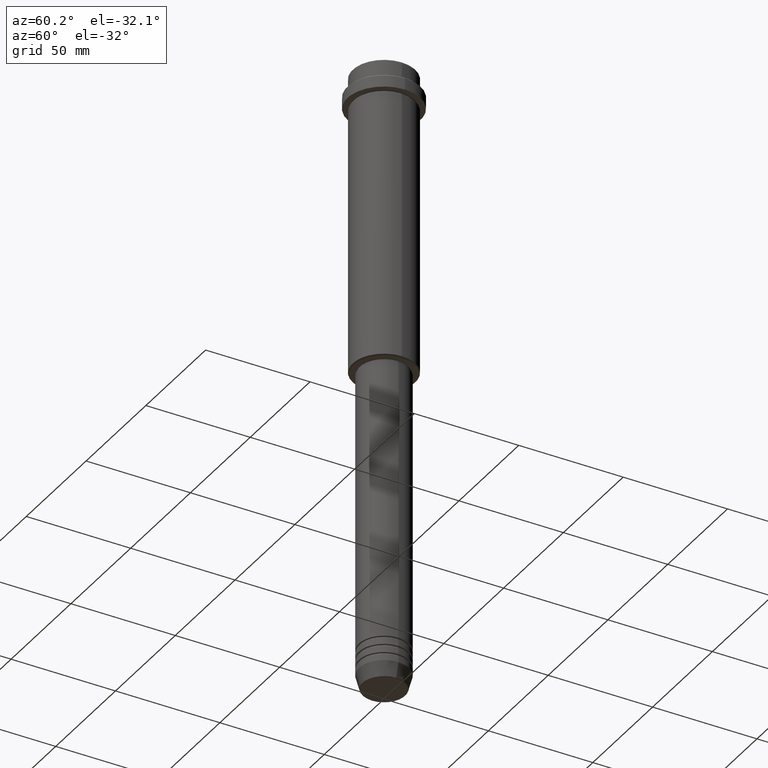
[diagram: clean part render]
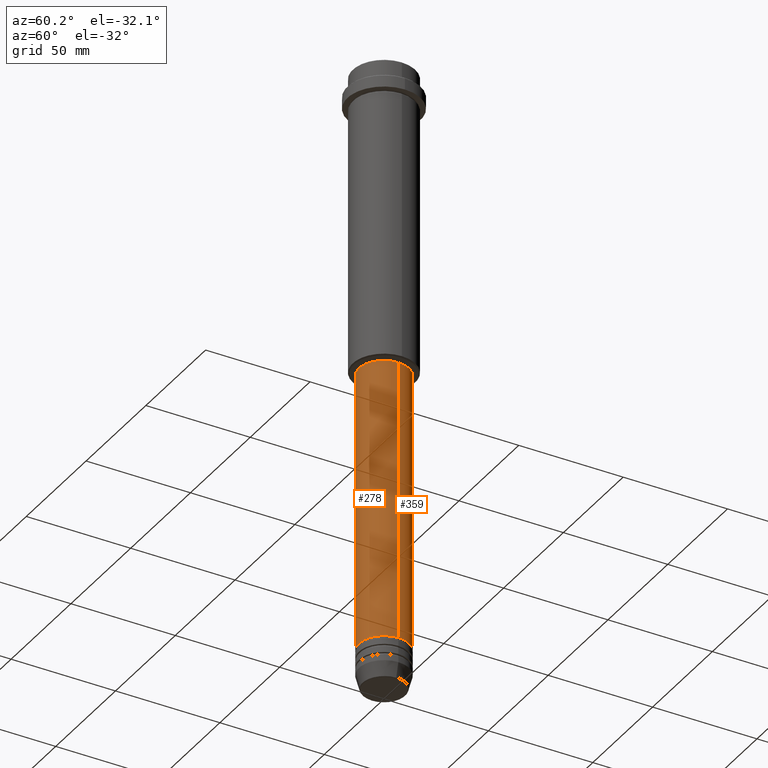
[diagram: same view with one multi-face feature highlighted, each face labeled with its STEP entity id]
A machine part, auxiliary view. The highlighted faces form ONE feature: a constant-radius fillet chain: 2 tangent blend faces with common blend radius 12 mm. The faces share edges in the B-rep.
Their STEP definitions:
[1] entity #359 (Cylinder):
#3 = CARTESIAN_POINT ( 'NONE',  ( -12.00000000000000000, 1.469576158976823947E-15, 0.000000000000000000 ) ) ;
#16 = DIRECTION ( 'NONE',  ( -0.000000000000000000, -0.000000000000000000, 1.000000000000000000 ) ) ;
#19 = CARTESIAN_POINT ( 'NONE',  ( 11.99999999999999822, 0.000000000000000000, -145.9999999999999432 ) ) ;
#25 = DIRECTION ( 'NONE',  ( 1.000000000000000000, 0.000000000000000000, 0.000000000000000000 ) ) ;
#40 = FACE_OUTER_BOUND ( 'NONE', #397, .T. ) ;
#61 = VECTOR ( 'NONE', #16, 1000.000000000000000 ) ;
#89 = EDGE_CURVE ( 'NONE', #106, #1076, #375, .T. ) ;
#106 = VERTEX_POINT ( 'NONE', #19 ) ;
#119 = ORIENTED_EDGE ( 'NONE', *, *, #324, .T. ) ;
#165 = VERTEX_POINT ( 'NONE', #1224 ) ;
#221 = DIRECTION ( 'NONE',  ( -0.000000000000000000, -0.000000000000000000, 1.000000000000000000 ) ) ;
#249 = CARTESIAN_POINT ( 'NONE',  ( -11.99999999999999822, 1.469576158976823750E-15, -145.9999999999999432 ) ) ;
#324 = EDGE_CURVE ( 'NONE', #165, #362, #1232, .T. ) ;
#359 = ADVANCED_FACE ( 'NONE', ( #40 ), #1251, .T. ) ;
#362 = VERTEX_POINT ( 'NONE', #565 ) ;
#375 = CIRCLE ( 'NONE', #940, 11.99999999999999822 ) ;
#397 = EDGE_LOOP ( 'NONE', ( #119, #413, #595, #1382 ) ) ;
#413 = ORIENTED_EDGE ( 'NONE', *, *, #907, .T. ) ;
#434 = LINE ( 'NONE', #3, #61 ) ;
#480 = DIRECTION ( 'NONE',  ( -0.000000000000000000, -0.000000000000000000, 1.000000000000000000 ) ) ;
#546 = DIRECTION ( 'NONE',  ( -0.000000000000000000, -0.000000000000000000, 1.000000000000000000 ) ) ;
#565 = CARTESIAN_POINT ( 'NONE',  ( -12.00000000000000000, 1.469576158976823947E-15, -280.9999999999999432 ) ) ;
#595 = ORIENTED_EDGE ( 'NONE', *, *, #89, .F. ) ;
#604 = DIRECTION ( 'NONE',  ( 1.000000000000000000, 0.000000000000000000, 0.000000000000000000 ) ) ;
#741 = CARTESIAN_POINT ( 'NONE',  ( 0.000000000000000000, 0.000000000000000000, -280.9999999999999432 ) ) ;
#769 = LINE ( 'NONE', #887, #1012 ) ;
#883 = CARTESIAN_POINT ( 'NONE',  ( 0.000000000000000000, 0.000000000000000000, -145.9999999999999432 ) ) ;
#887 = CARTESIAN_POINT ( 'NONE',  ( 12.00000000000000000, 0.000000000000000000, 0.000000000000000000 ) ) ;
#907 = EDGE_CURVE ( 'NONE', #362, #1076, #434, .T. ) ;
#926 = EDGE_CURVE ( 'NONE', #165, #106, #769, .T. ) ;
#940 = AXIS2_PLACEMENT_3D ( 'NONE', #883, #221, #25 ) ;
#944 = AXIS2_PLACEMENT_3D ( 'NONE', #741, #1178, #604 ) ;
#1012 = VECTOR ( 'NONE', #546, 1000.000000000000000 ) ;
#1076 = VERTEX_POINT ( 'NONE', #249 ) ;
#1111 = DIRECTION ( 'NONE',  ( 1.000000000000000000, 0.000000000000000000, 0.000000000000000000 ) ) ;
#1156 = CARTESIAN_POINT ( 'NONE',  ( 0.000000000000000000, 0.000000000000000000, 0.000000000000000000 ) ) ;
#1178 = DIRECTION ( 'NONE',  ( -0.000000000000000000, -0.000000000000000000, 1.000000000000000000 ) ) ;
#1224 = CARTESIAN_POINT ( 'NONE',  ( 12.00000000000000000, 0.000000000000000000, -280.9999999999999432 ) ) ;
#1232 = CIRCLE ( 'NONE', #944, 12.00000000000000000 ) ;
#1251 = CYLINDRICAL_SURFACE ( 'NONE', #1367, 12.00000000000000000 ) ;
#1367 = AXIS2_PLACEMENT_3D ( 'NONE', #1156, #480, #1111 ) ;
#1382 = ORIENTED_EDGE ( 'NONE', *, *, #926, .F. ) ;
[2] entity #278 (Cylinder):
#3 = CARTESIAN_POINT ( 'NONE',  ( -12.00000000000000000, 1.469576158976823947E-15, 0.000000000000000000 ) ) ;
#16 = DIRECTION ( 'NONE',  ( -0.000000000000000000, -0.000000000000000000, 1.000000000000000000 ) ) ;
#19 = CARTESIAN_POINT ( 'NONE',  ( 11.99999999999999822, 0.000000000000000000, -145.9999999999999432 ) ) ;
#61 = VECTOR ( 'NONE', #16, 1000.000000000000000 ) ;
#106 = VERTEX_POINT ( 'NONE', #19 ) ;
#131 = DIRECTION ( 'NONE',  ( 1.000000000000000000, 0.000000000000000000, 0.000000000000000000 ) ) ;
#142 = CYLINDRICAL_SURFACE ( 'NONE', #969, 12.00000000000000000 ) ;
#165 = VERTEX_POINT ( 'NONE', #1224 ) ;
#237 = CARTESIAN_POINT ( 'NONE',  ( 0.000000000000000000, 0.000000000000000000, -145.9999999999999432 ) ) ;
#249 = CARTESIAN_POINT ( 'NONE',  ( -11.99999999999999822, 1.469576158976823750E-15, -145.9999999999999432 ) ) ;
#278 = ADVANCED_FACE ( 'NONE', ( #673 ), #142, .T. ) ;
#308 = EDGE_LOOP ( 'NONE', ( #710, #618, #958, #785 ) ) ;
#338 = AXIS2_PLACEMENT_3D ( 'NONE', #530, #538, #642 ) ;
#345 = CARTESIAN_POINT ( 'NONE',  ( 0.000000000000000000, 0.000000000000000000, 0.000000000000000000 ) ) ;
#362 = VERTEX_POINT ( 'NONE', #565 ) ;
#434 = LINE ( 'NONE', #3, #61 ) ;
#459 = DIRECTION ( 'NONE',  ( 1.000000000000000000, 0.000000000000000000, 0.000000000000000000 ) ) ;
#530 = CARTESIAN_POINT ( 'NONE',  ( 0.000000000000000000, 0.000000000000000000, -280.9999999999999432 ) ) ;
#538 = DIRECTION ( 'NONE',  ( -0.000000000000000000, -0.000000000000000000, 1.000000000000000000 ) ) ;
#546 = DIRECTION ( 'NONE',  ( -0.000000000000000000, -0.000000000000000000, 1.000000000000000000 ) ) ;
#565 = CARTESIAN_POINT ( 'NONE',  ( -12.00000000000000000, 1.469576158976823947E-15, -280.9999999999999432 ) ) ;
#606 = CIRCLE ( 'NONE', #952, 11.99999999999999822 ) ;
#618 = ORIENTED_EDGE ( 'NONE', *, *, #1297, .T. ) ;
#642 = DIRECTION ( 'NONE',  ( 1.000000000000000000, 0.000000000000000000, 0.000000000000000000 ) ) ;
#673 = FACE_OUTER_BOUND ( 'NONE', #308, .T. ) ;
#678 = DIRECTION ( 'NONE',  ( -0.000000000000000000, -0.000000000000000000, 1.000000000000000000 ) ) ;
#710 = ORIENTED_EDGE ( 'NONE', *, *, #907, .F. ) ;
#769 = LINE ( 'NONE', #887, #1012 ) ;
#785 = ORIENTED_EDGE ( 'NONE', *, *, #1408, .F. ) ;
#887 = CARTESIAN_POINT ( 'NONE',  ( 12.00000000000000000, 0.000000000000000000, 0.000000000000000000 ) ) ;
#907 = EDGE_CURVE ( 'NONE', #362, #1076, #434, .T. ) ;
#926 = EDGE_CURVE ( 'NONE', #165, #106, #769, .T. ) ;
#952 = AXIS2_PLACEMENT_3D ( 'NONE', #237, #678, #131 ) ;
#958 = ORIENTED_EDGE ( 'NONE', *, *, #926, .T. ) ;
#969 = AXIS2_PLACEMENT_3D ( 'NONE', #345, #1014, #459 ) ;
#1012 = VECTOR ( 'NONE', #546, 1000.000000000000000 ) ;
#1014 = DIRECTION ( 'NONE',  ( -0.000000000000000000, -0.000000000000000000, 1.000000000000000000 ) ) ;
#1076 = VERTEX_POINT ( 'NONE', #249 ) ;
#1224 = CARTESIAN_POINT ( 'NONE',  ( 12.00000000000000000, 0.000000000000000000, -280.9999999999999432 ) ) ;
#1284 = CIRCLE ( 'NONE', #338, 12.00000000000000000 ) ;
#1297 = EDGE_CURVE ( 'NONE', #362, #165, #1284, .T. ) ;
#1408 = EDGE_CURVE ( 'NONE', #1076, #106, #606, .T. ) ;